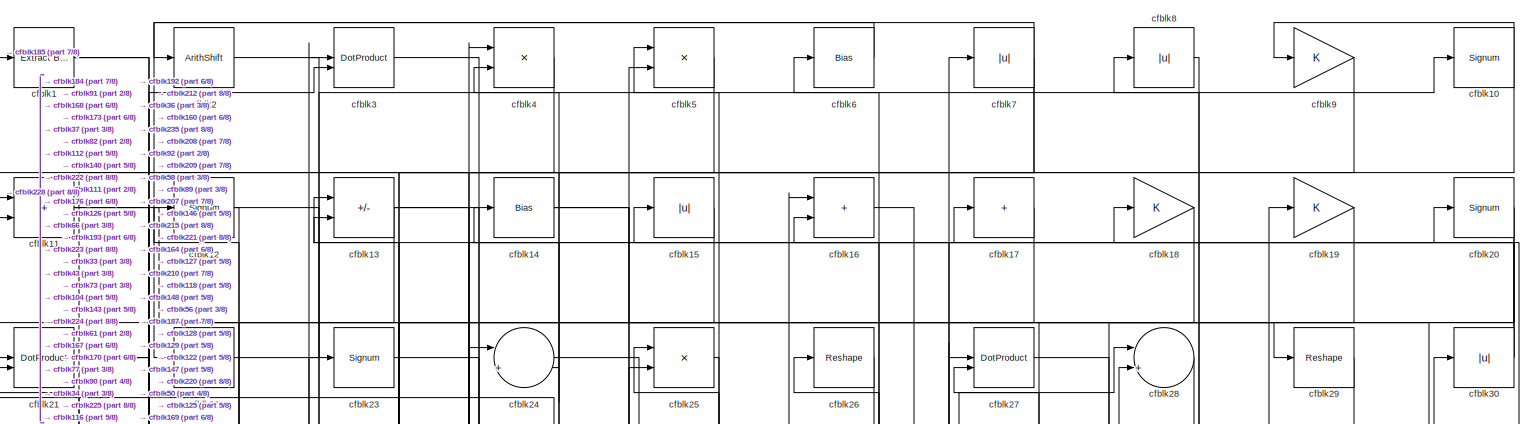
[diagram: root canvas - part 1/8, full width, top band]
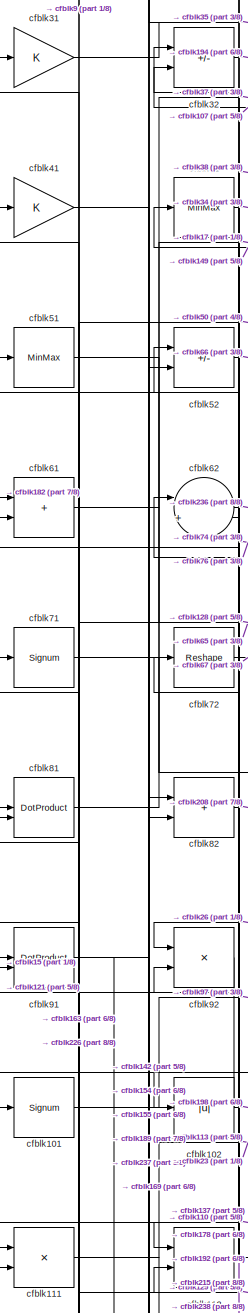
[diagram: root canvas - part 2/8, top left region]
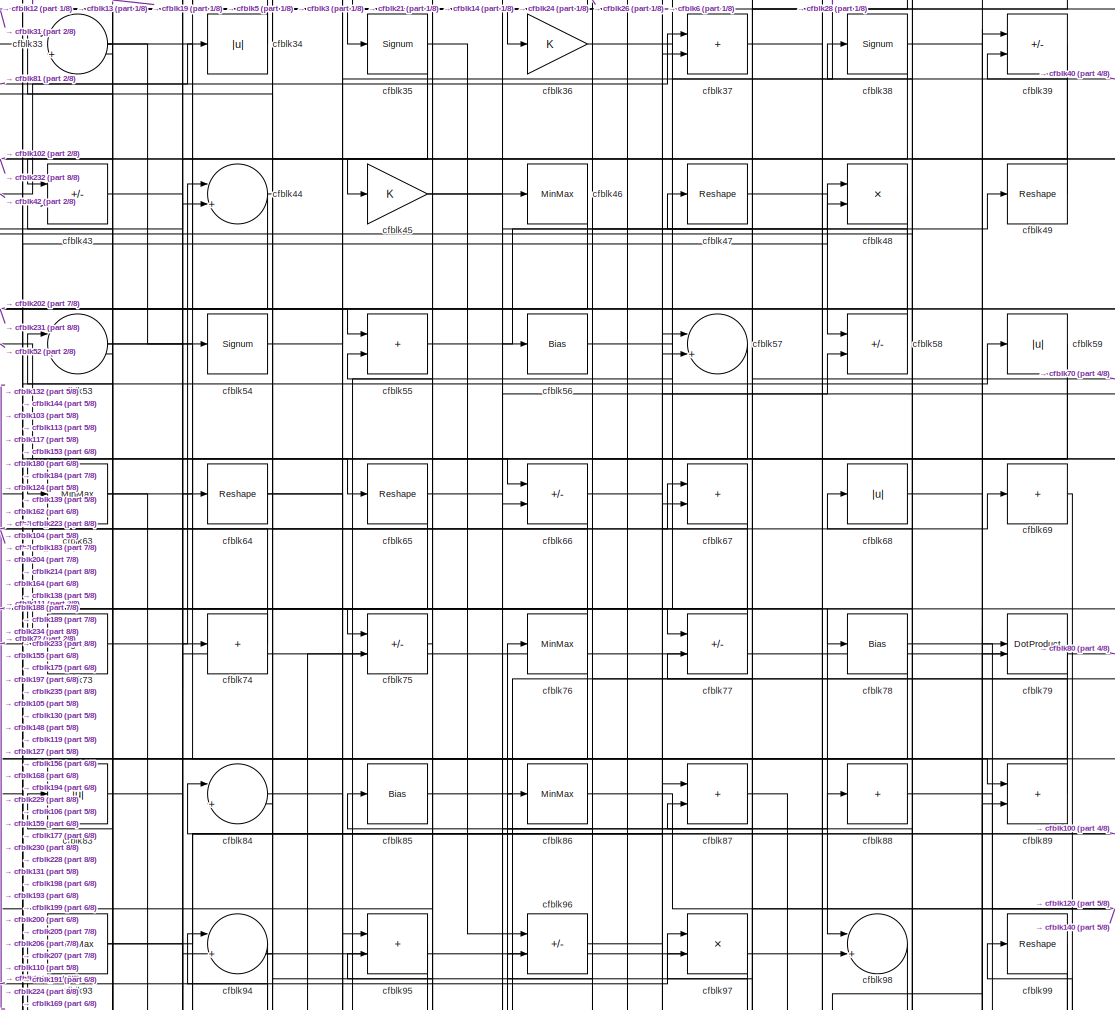
[diagram: root canvas - part 3/8, top center region]
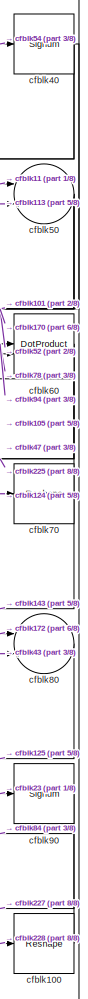
[diagram: root canvas - part 4/8, top right region]
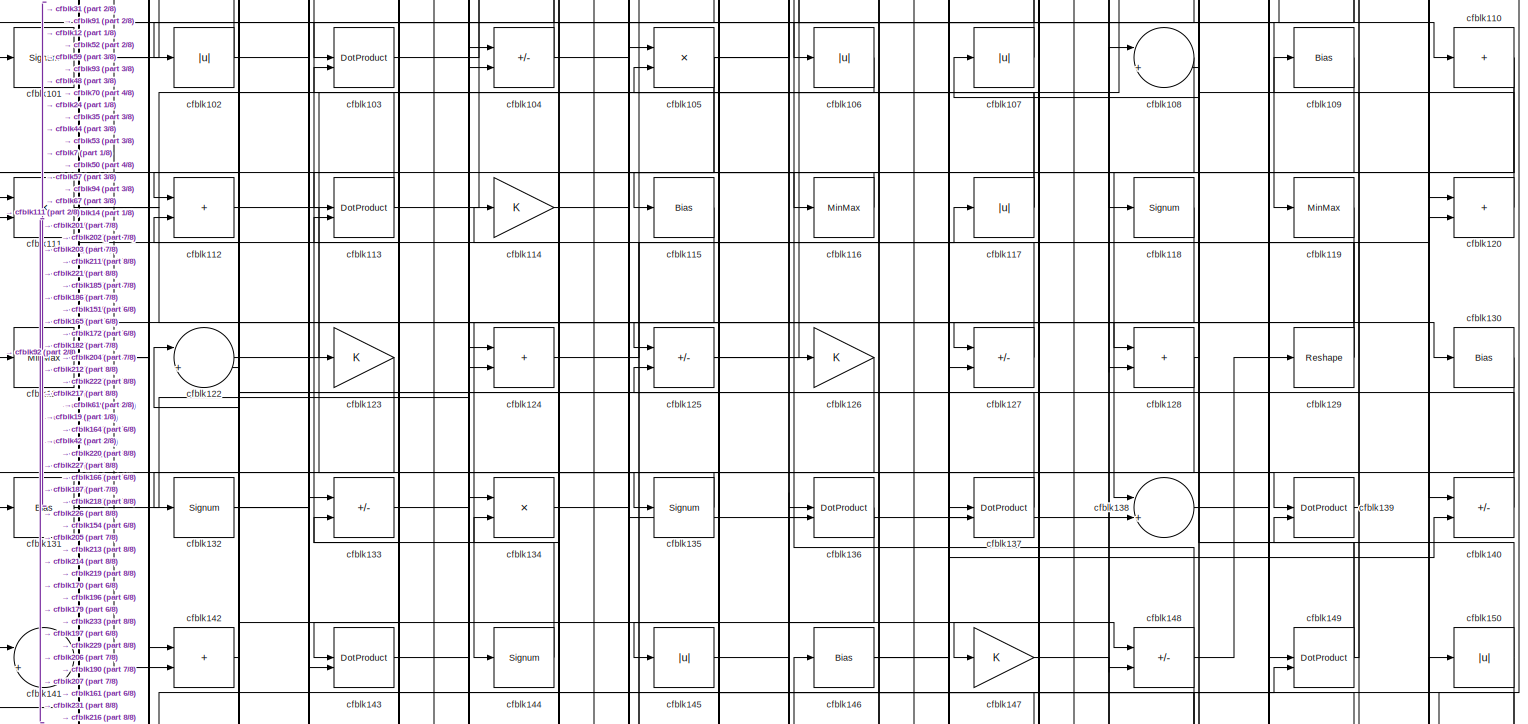
[diagram: root canvas - part 5/8, full width, middle band]
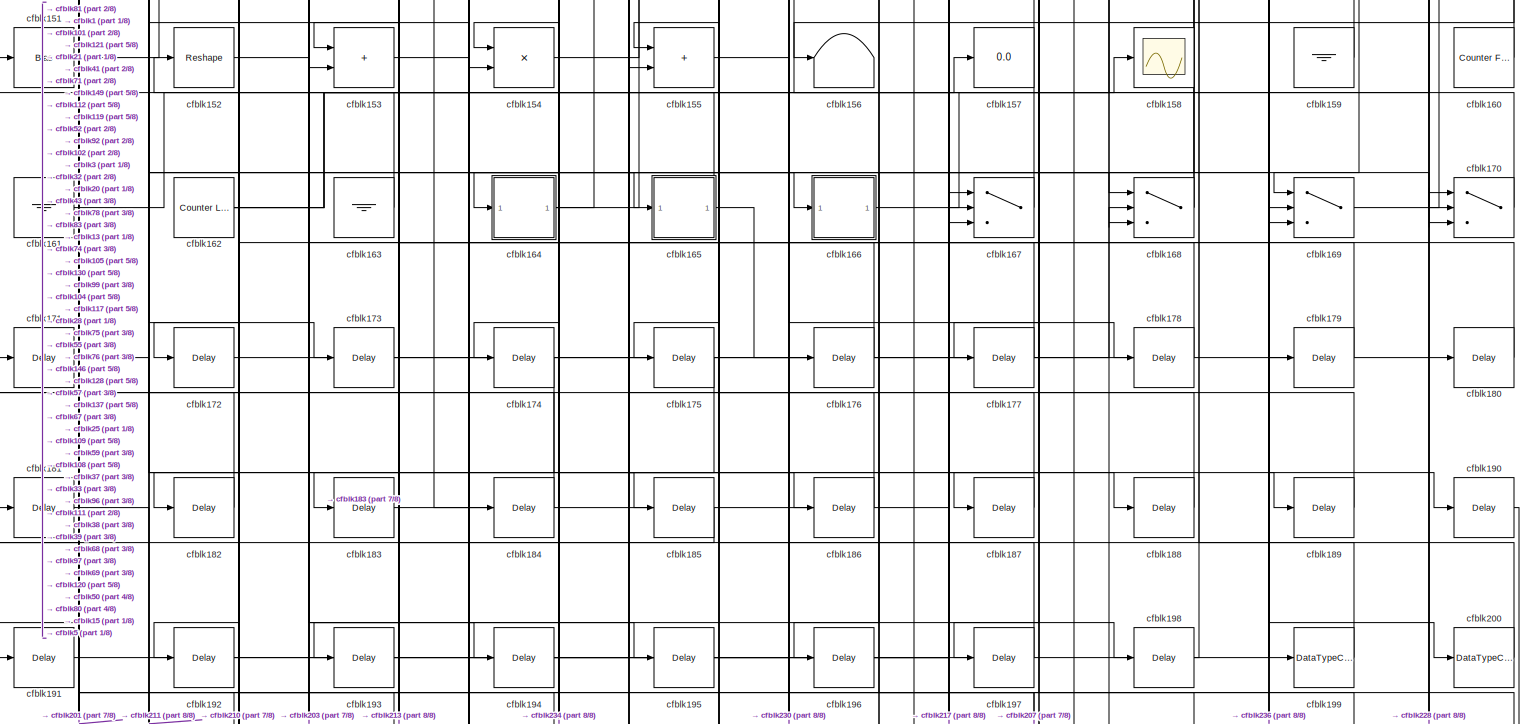
[diagram: root canvas - part 6/8, full width, bottom band]
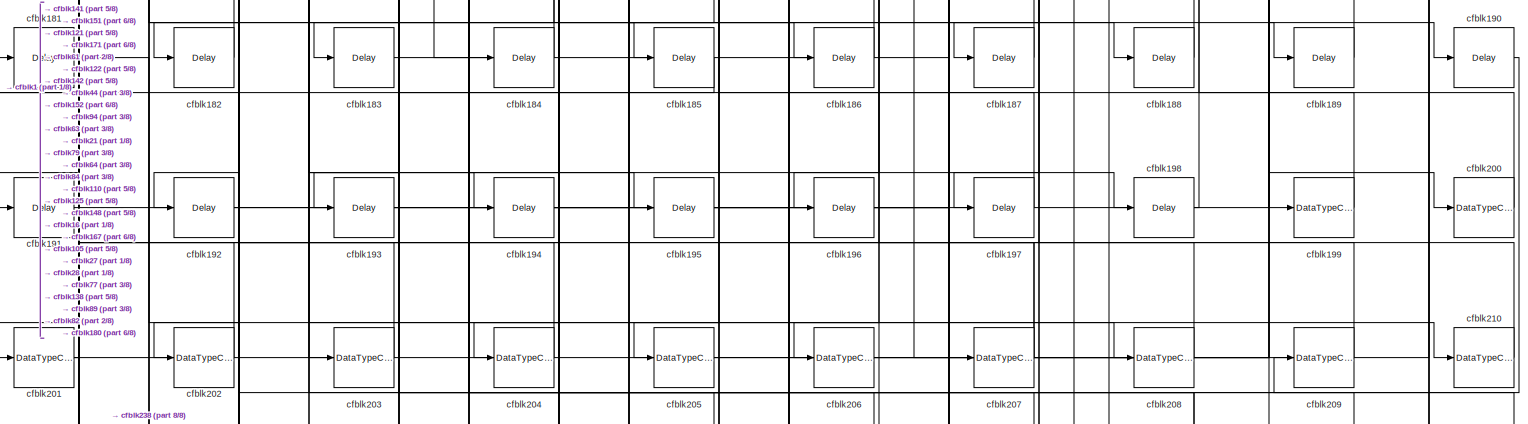
[diagram: root canvas - part 7/8, full width, bottom band]
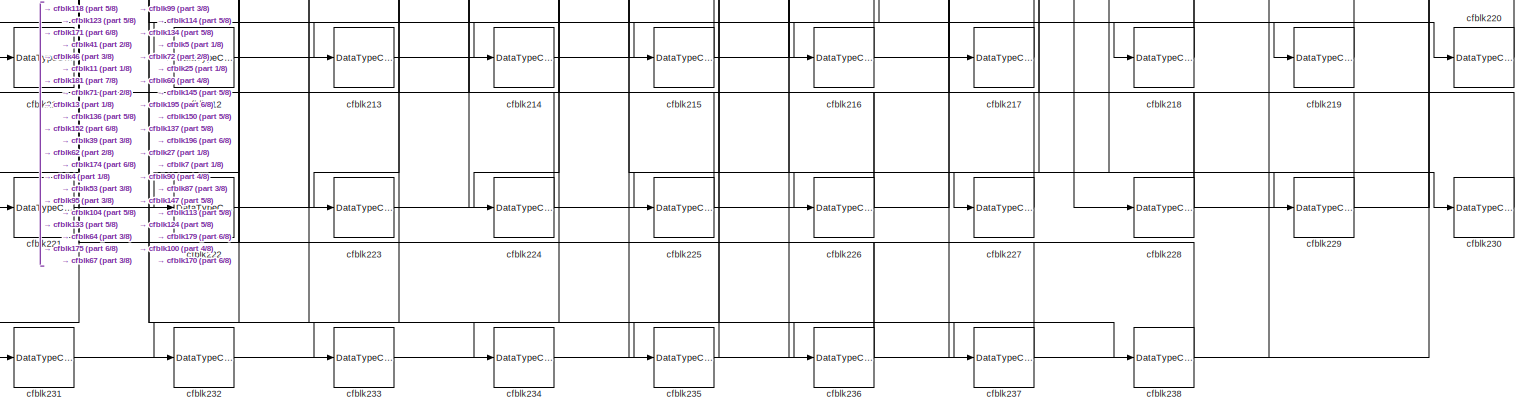
[diagram: root canvas - part 8/8, full width, bottom band]
MODEL slx_4f5a4ba227bb
KIND model
CONFIG AbsTol = auto
CONFIG EnableMultiTasking = off
CONFIG FixedStep = auto
CONFIG MaxStep = auto
CONFIG MinStep = auto
CONFIG RelTol = 1e-3
CONFIG SampleTimeConstraint = Unconstrained
CONFIG SolverName = VariableStepAuto
CONFIG StartTime = 0.0
CONFIG StopTime = 10.0
BLOCK [Reference] cfblk1  REF=simulink/Logic and Bit
Operations/Extract Bits
  LibrarySourceBlock = hdlsllib/Logic and Bit\nOperations/Extract Bits
  SourceBlock = simulink/Logic and Bit\nOperations/Extract Bits
  SourceType = Extract Bits
BLOCK [Signum] cfblk10
BLOCK [Reshape] cfblk100
BLOCK [Signum] cfblk101
BLOCK [Abs] cfblk102
  SaturateOnIntegerOverflow = off
BLOCK [DotProduct] cfblk103
  OutDataTypeStr = Inherit: Inherit via internal rule
BLOCK [Sum] cfblk104
  IconShape = rectangular
  Inputs = +-
BLOCK [Product] cfblk105
  Inputs = */
  RndMeth = Zero
  SaturateOnIntegerOverflow = on
BLOCK [Abs] cfblk106
  SaturateOnIntegerOverflow = off
BLOCK [Abs] cfblk107
  SaturateOnIntegerOverflow = off
BLOCK [Sum] cfblk108
  Inputs = |++
BLOCK [Bias] cfblk109
  Bias = 0.0
  SaturateOnIntegerOverflow = off
BLOCK [Sum] cfblk11
  IconShape = rectangular
BLOCK [Sum] cfblk110
  IconShape = rectangular
  Inputs = +
BLOCK [Product] cfblk111
  Inputs = */
  RndMeth = Zero
  SaturateOnIntegerOverflow = on
BLOCK [Sum] cfblk112
  IconShape = rectangular
BLOCK [DotProduct] cfblk113
  OutDataTypeStr = Inherit: Inherit via internal rule
BLOCK [Gain] cfblk114
BLOCK [Bias] cfblk115
  Bias = 0.0
  SaturateOnIntegerOverflow = off
BLOCK [MinMax] cfblk116
BLOCK [Abs] cfblk117
  SaturateOnIntegerOverflow = off
BLOCK [Signum] cfblk118
BLOCK [MinMax] cfblk119
BLOCK [Signum] cfblk12
BLOCK [Sum] cfblk120
  IconShape = rectangular
BLOCK [MinMax] cfblk121
BLOCK [Sum] cfblk122
  Inputs = |++
BLOCK [Gain] cfblk123
BLOCK [Sum] cfblk124
  IconShape = rectangular
BLOCK [Sum] cfblk125
  IconShape = rectangular
  Inputs = +-
BLOCK [Gain] cfblk126
BLOCK [Sum] cfblk127
  IconShape = rectangular
  Inputs = +-
BLOCK [Sum] cfblk128
  IconShape = rectangular
BLOCK [Reshape] cfblk129
BLOCK [Sum] cfblk13
  IconShape = rectangular
  Inputs = +-
BLOCK [Bias] cfblk130
  Bias = 0.0
  SaturateOnIntegerOverflow = off
BLOCK [Bias] cfblk131
  Bias = 0.0
  SaturateOnIntegerOverflow = off
BLOCK [Signum] cfblk132
BLOCK [Sum] cfblk133
  IconShape = rectangular
  Inputs = +-
BLOCK [Product] cfblk134
  Inputs = */
  RndMeth = Zero
  SaturateOnIntegerOverflow = on
BLOCK [Signum] cfblk135
BLOCK [DotProduct] cfblk136
  OutDataTypeStr = Inherit: Inherit via internal rule
BLOCK [DotProduct] cfblk137
  OutDataTypeStr = Inherit: Inherit via internal rule
BLOCK [Sum] cfblk138
  Inputs = |++
BLOCK [DotProduct] cfblk139
  OutDataTypeStr = Inherit: Inherit via internal rule
BLOCK [Bias] cfblk14
  Bias = 0.0
  SaturateOnIntegerOverflow = off
BLOCK [Sum] cfblk140
  IconShape = rectangular
  Inputs = +-
BLOCK [Sum] cfblk141
  Inputs = |++
BLOCK [Sum] cfblk142
  IconShape = rectangular
BLOCK [DotProduct] cfblk143
  OutDataTypeStr = Inherit: Inherit via internal rule
BLOCK [Signum] cfblk144
BLOCK [Abs] cfblk145
  SaturateOnIntegerOverflow = off
BLOCK [Bias] cfblk146
  Bias = 0.0
  SaturateOnIntegerOverflow = off
BLOCK [Gain] cfblk147
BLOCK [Sum] cfblk148
  IconShape = rectangular
  Inputs = +-
BLOCK [DotProduct] cfblk149
  OutDataTypeStr = Inherit: Inherit via internal rule
BLOCK [Abs] cfblk15
  SaturateOnIntegerOverflow = off
BLOCK [Abs] cfblk150
  SaturateOnIntegerOverflow = off
BLOCK [Bias] cfblk151
  Bias = 0.0
  SaturateOnIntegerOverflow = off
BLOCK [Reshape] cfblk152
BLOCK [Sum] cfblk153
  IconShape = rectangular
BLOCK [Product] cfblk154
  Inputs = */
  RndMeth = Zero
  SaturateOnIntegerOverflow = on
BLOCK [Sum] cfblk155
  IconShape = rectangular
BLOCK [Terminator] cfblk156
BLOCK [Display] cfblk157
  Decimation = 1
BLOCK [Scope] cfblk158
  Floating = off
  NumInputPorts = 1
  ScopeSpecificationString = Simulink.scopes.TimeScopeBlockCfg('CurrentConfiguration', extmgr.ConfigurationSet(extmgr.Configuration('Core','General UI',true),extmgr.Configuration('Core','Source UI',true),extmgr.Configuration('Sources','WiredSimulink',true,'DataLoggingVariableName','ScopeData2','DataLoggingSaveFormat','Array','DataLoggingLimitDataPoints',true,'DataLoggingDecimation','1'),extmgr.Configuration('Visuals','Time Do...<+868ch>
BLOCK [Ground] cfblk159
BLOCK [Sum] cfblk16
  IconShape = rectangular
BLOCK [Reference] cfblk160  REF=hdlsllib/Sources/Counter
Free-Running
  SourceBlock = hdlsllib/Sources/Counter\nFree-Running
  SourceType = Counter Free-Running
BLOCK [Ground] cfblk161
BLOCK [Reference] cfblk162  REF=hdlsllib/Sources/Counter
Limited
  SourceBlock = hdlsllib/Sources/Counter\nLimited
  SourceType = Counter Limited
BLOCK [Ground] cfblk163
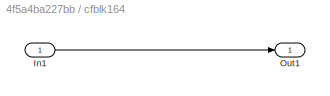
BLOCK [SubSystem] cfblk164
  LibrarySourceBlock = hdlsllib/Ports &\nSubsystems/Subsystem
BLOCK [Inport] cfblk164/In1
BLOCK [Outport] cfblk164/Out1
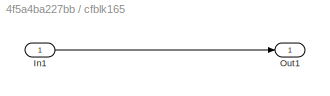
BLOCK [SubSystem] cfblk165
  LibrarySourceBlock = hdlsllib/Ports &\nSubsystems/Subsystem
BLOCK [Inport] cfblk165/In1
BLOCK [Outport] cfblk165/Out1
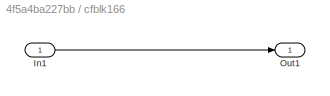
BLOCK [SubSystem] cfblk166
  LibrarySourceBlock = hdlsllib/Ports &\nSubsystems/Subsystem
BLOCK [Inport] cfblk166/In1
BLOCK [Outport] cfblk166/Out1
BLOCK [Switch] cfblk167
  InputSameDT = off
  SaturateOnIntegerOverflow = off
BLOCK [Switch] cfblk168
  InputSameDT = off
  SaturateOnIntegerOverflow = off
BLOCK [Switch] cfblk169
  InputSameDT = off
  SaturateOnIntegerOverflow = off
BLOCK [Sum] cfblk17
  IconShape = rectangular
  Inputs = +
BLOCK [Switch] cfblk170
  InputSameDT = off
  SaturateOnIntegerOverflow = off
BLOCK [Delay] cfblk171
  InputPortMap = u0
  SampleTime = 1
BLOCK [Delay] cfblk172
  InputPortMap = u0
  SampleTime = 1
BLOCK [Delay] cfblk173
  InputPortMap = u0
  SampleTime = 1
BLOCK [Delay] cfblk174
  InputPortMap = u0
  SampleTime = 1
BLOCK [Delay] cfblk175
  InputPortMap = u0
  SampleTime = 1
BLOCK [Delay] cfblk176
  InputPortMap = u0
  SampleTime = 1
BLOCK [Delay] cfblk177
  InputPortMap = u0
  SampleTime = 1
BLOCK [Delay] cfblk178
  InputPortMap = u0
  SampleTime = 1
BLOCK [Delay] cfblk179
  InputPortMap = u0
  SampleTime = 1
BLOCK [Gain] cfblk18
BLOCK [Delay] cfblk180
  InputPortMap = u0
  SampleTime = 1
BLOCK [Delay] cfblk181
  InputPortMap = u0
  SampleTime = 1
BLOCK [Delay] cfblk182
  InputPortMap = u0
  SampleTime = 1
BLOCK [Delay] cfblk183
  InputPortMap = u0
  SampleTime = 1
BLOCK [Delay] cfblk184
  InputPortMap = u0
  SampleTime = 1
BLOCK [Delay] cfblk185
  InputPortMap = u0
  SampleTime = 1
BLOCK [Delay] cfblk186
  InputPortMap = u0
  SampleTime = 1
BLOCK [Delay] cfblk187
  InputPortMap = u0
  SampleTime = 1
BLOCK [Delay] cfblk188
  InputPortMap = u0
  SampleTime = 1
BLOCK [Delay] cfblk189
  InputPortMap = u0
  SampleTime = 1
BLOCK [Gain] cfblk19
BLOCK [Delay] cfblk190
  InputPortMap = u0
  SampleTime = 1
BLOCK [Delay] cfblk191
  InputPortMap = u0
  SampleTime = 1
BLOCK [Delay] cfblk192
  InputPortMap = u0
  SampleTime = 1
BLOCK [Delay] cfblk193
  InputPortMap = u0
  SampleTime = 1
BLOCK [Delay] cfblk194
  InputPortMap = u0
  SampleTime = 1
BLOCK [Delay] cfblk195
  InputPortMap = u0
  SampleTime = 1
BLOCK [Delay] cfblk196
  InputPortMap = u0
  SampleTime = 1
BLOCK [Delay] cfblk197
  InputPortMap = u0
  SampleTime = 1
BLOCK [Delay] cfblk198
  InputPortMap = u0
  SampleTime = 1
BLOCK [DataTypeConversion] cfblk199
  OutDataTypeStr = uint8
  RndMeth = Floor
  SaturateOnIntegerOverflow = off
BLOCK [ArithShift] cfblk2
  BitShiftNumber = 8
  InputPortMap = u0
BLOCK [Signum] cfblk20
BLOCK [DataTypeConversion] cfblk200
  OutDataTypeStr = uint8
  RndMeth = Floor
  SaturateOnIntegerOverflow = off
BLOCK [DataTypeConversion] cfblk201
  RndMeth = Floor
  SaturateOnIntegerOverflow = off
BLOCK [DataTypeConversion] cfblk202
  OutDataTypeStr = uint8
  RndMeth = Floor
  SaturateOnIntegerOverflow = off
BLOCK [DataTypeConversion] cfblk203
  OutDataTypeStr = uint8
  RndMeth = Floor
  SaturateOnIntegerOverflow = off
BLOCK [DataTypeConversion] cfblk204
  OutDataTypeStr = uint8
  RndMeth = Floor
  SaturateOnIntegerOverflow = off
BLOCK [DataTypeConversion] cfblk205
  OutDataTypeStr = uint8
  RndMeth = Floor
  SaturateOnIntegerOverflow = off
BLOCK [DataTypeConversion] cfblk206
  OutDataTypeStr = uint8
  RndMeth = Floor
  SaturateOnIntegerOverflow = off
BLOCK [DataTypeConversion] cfblk207
  RndMeth = Floor
  SaturateOnIntegerOverflow = off
BLOCK [DataTypeConversion] cfblk208
  OutDataTypeStr = uint8
  RndMeth = Floor
  SaturateOnIntegerOverflow = off
BLOCK [DataTypeConversion] cfblk209
  OutDataTypeStr = uint8
  RndMeth = Floor
  SaturateOnIntegerOverflow = off
BLOCK [DotProduct] cfblk21
  OutDataTypeStr = Inherit: Inherit via internal rule
BLOCK [DataTypeConversion] cfblk210
  OutDataTypeStr = uint8
  RndMeth = Floor
  SaturateOnIntegerOverflow = off
BLOCK [DataTypeConversion] cfblk211
  OutDataTypeStr = uint8
  RndMeth = Floor
  SaturateOnIntegerOverflow = off
BLOCK [DataTypeConversion] cfblk212
  OutDataTypeStr = uint8
  RndMeth = Floor
  SaturateOnIntegerOverflow = off
BLOCK [DataTypeConversion] cfblk213
  OutDataTypeStr = uint8
  RndMeth = Floor
  SaturateOnIntegerOverflow = off
BLOCK [DataTypeConversion] cfblk214
  OutDataTypeStr = uint8
  RndMeth = Floor
  SaturateOnIntegerOverflow = off
BLOCK [DataTypeConversion] cfblk215
  RndMeth = Floor
  SaturateOnIntegerOverflow = off
BLOCK [DataTypeConversion] cfblk216
  OutDataTypeStr = uint8
  RndMeth = Floor
  SaturateOnIntegerOverflow = off
BLOCK [DataTypeConversion] cfblk217
  OutDataTypeStr = uint8
  RndMeth = Floor
  SaturateOnIntegerOverflow = off
BLOCK [DataTypeConversion] cfblk218
  RndMeth = Floor
  SaturateOnIntegerOverflow = off
BLOCK [DataTypeConversion] cfblk219
  OutDataTypeStr = uint8
  RndMeth = Floor
  SaturateOnIntegerOverflow = off
BLOCK [Sum] cfblk22
  IconShape = rectangular
  Inputs = +
BLOCK [DataTypeConversion] cfblk220
  OutDataTypeStr = uint8
  RndMeth = Floor
  SaturateOnIntegerOverflow = off
BLOCK [DataTypeConversion] cfblk221
  OutDataTypeStr = uint8
  RndMeth = Floor
  SaturateOnIntegerOverflow = off
BLOCK [DataTypeConversion] cfblk222
  OutDataTypeStr = uint8
  RndMeth = Floor
  SaturateOnIntegerOverflow = off
BLOCK [DataTypeConversion] cfblk223
  OutDataTypeStr = uint8
  RndMeth = Floor
  SaturateOnIntegerOverflow = off
BLOCK [DataTypeConversion] cfblk224
  OutDataTypeStr = uint8
  RndMeth = Floor
  SaturateOnIntegerOverflow = off
BLOCK [DataTypeConversion] cfblk225
  OutDataTypeStr = uint8
  RndMeth = Floor
  SaturateOnIntegerOverflow = off
BLOCK [DataTypeConversion] cfblk226
  RndMeth = Floor
  SaturateOnIntegerOverflow = off
BLOCK [DataTypeConversion] cfblk227
  OutDataTypeStr = uint8
  RndMeth = Floor
  SaturateOnIntegerOverflow = off
BLOCK [DataTypeConversion] cfblk228
  RndMeth = Floor
  SaturateOnIntegerOverflow = off
BLOCK [DataTypeConversion] cfblk229
  OutDataTypeStr = uint8
  RndMeth = Floor
  SaturateOnIntegerOverflow = off
BLOCK [Signum] cfblk23
BLOCK [DataTypeConversion] cfblk230
  OutDataTypeStr = uint8
  RndMeth = Floor
  SaturateOnIntegerOverflow = off
BLOCK [DataTypeConversion] cfblk231
  OutDataTypeStr = uint8
  RndMeth = Floor
  SaturateOnIntegerOverflow = off
BLOCK [DataTypeConversion] cfblk232
  OutDataTypeStr = uint8
  RndMeth = Floor
  SaturateOnIntegerOverflow = off
BLOCK [DataTypeConversion] cfblk233
  OutDataTypeStr = uint8
  RndMeth = Floor
  SaturateOnIntegerOverflow = off
BLOCK [DataTypeConversion] cfblk234
  OutDataTypeStr = uint8
  RndMeth = Floor
  SaturateOnIntegerOverflow = off
BLOCK [DataTypeConversion] cfblk235
  OutDataTypeStr = uint8
  RndMeth = Floor
  SaturateOnIntegerOverflow = off
BLOCK [DataTypeConversion] cfblk236
  RndMeth = Floor
  SaturateOnIntegerOverflow = off
BLOCK [DataTypeConversion] cfblk237
  OutDataTypeStr = uint8
  RndMeth = Floor
  SaturateOnIntegerOverflow = off
BLOCK [DataTypeConversion] cfblk238
  OutDataTypeStr = uint8
  RndMeth = Floor
  SaturateOnIntegerOverflow = off
BLOCK [Sum] cfblk24
  Inputs = |++
BLOCK [Product] cfblk25
  Inputs = */
  RndMeth = Zero
  SaturateOnIntegerOverflow = on
BLOCK [Reshape] cfblk26
BLOCK [DotProduct] cfblk27
  OutDataTypeStr = Inherit: Inherit via internal rule
BLOCK [Sum] cfblk28
  Inputs = |++
BLOCK [Reshape] cfblk29
BLOCK [DotProduct] cfblk3
  OutDataTypeStr = Inherit: Inherit via internal rule
BLOCK [Abs] cfblk30
  SaturateOnIntegerOverflow = off
BLOCK [Gain] cfblk31
BLOCK [Sum] cfblk32
  IconShape = rectangular
  Inputs = +-
BLOCK [Sum] cfblk33
  Inputs = |++
BLOCK [Abs] cfblk34
  SaturateOnIntegerOverflow = off
BLOCK [Signum] cfblk35
BLOCK [Gain] cfblk36
BLOCK [Sum] cfblk37
  IconShape = rectangular
BLOCK [Signum] cfblk38
BLOCK [Sum] cfblk39
  IconShape = rectangular
  Inputs = +-
BLOCK [Product] cfblk4
  Inputs = */
  RndMeth = Zero
  SaturateOnIntegerOverflow = on
BLOCK [Signum] cfblk40
BLOCK [Gain] cfblk41
BLOCK [MinMax] cfblk42
BLOCK [Sum] cfblk43
  IconShape = rectangular
  Inputs = +-
BLOCK [Sum] cfblk44
  Inputs = |++
BLOCK [Gain] cfblk45
BLOCK [MinMax] cfblk46
BLOCK [Reshape] cfblk47
BLOCK [Product] cfblk48
  Inputs = */
  RndMeth = Zero
  SaturateOnIntegerOverflow = on
BLOCK [Reshape] cfblk49
BLOCK [Product] cfblk5
  Inputs = */
  RndMeth = Zero
  SaturateOnIntegerOverflow = on
BLOCK [Sum] cfblk50
  Inputs = |++
BLOCK [MinMax] cfblk51
BLOCK [Sum] cfblk52
  IconShape = rectangular
  Inputs = +-
BLOCK [Sum] cfblk53
  Inputs = |++
BLOCK [Signum] cfblk54
BLOCK [Sum] cfblk55
  IconShape = rectangular
BLOCK [Bias] cfblk56
  Bias = 0.0
  SaturateOnIntegerOverflow = off
BLOCK [Sum] cfblk57
  Inputs = |++
BLOCK [Sum] cfblk58
  IconShape = rectangular
  Inputs = +-
BLOCK [Abs] cfblk59
  SaturateOnIntegerOverflow = off
BLOCK [Bias] cfblk6
  Bias = 0.0
  SaturateOnIntegerOverflow = off
BLOCK [DotProduct] cfblk60
  OutDataTypeStr = Inherit: Inherit via internal rule
BLOCK [Sum] cfblk61
  IconShape = rectangular
BLOCK [Sum] cfblk62
  Inputs = |++
BLOCK [MinMax] cfblk63
BLOCK [Reshape] cfblk64
BLOCK [Reshape] cfblk65
BLOCK [Sum] cfblk66
  IconShape = rectangular
  Inputs = +-
BLOCK [Sum] cfblk67
  IconShape = rectangular
BLOCK [Abs] cfblk68
  SaturateOnIntegerOverflow = off
BLOCK [Sum] cfblk69
  IconShape = rectangular
  Inputs = +
BLOCK [Abs] cfblk7
  SaturateOnIntegerOverflow = off
BLOCK [Reshape] cfblk70
BLOCK [Signum] cfblk71
BLOCK [Reshape] cfblk72
BLOCK [Signum] cfblk73
BLOCK [Sum] cfblk74
  IconShape = rectangular
  Inputs = +
BLOCK [Sum] cfblk75
  IconShape = rectangular
  Inputs = +-
BLOCK [MinMax] cfblk76
BLOCK [Sum] cfblk77
  IconShape = rectangular
  Inputs = +-
BLOCK [Bias] cfblk78
  Bias = 0.0
  SaturateOnIntegerOverflow = off
BLOCK [DotProduct] cfblk79
  OutDataTypeStr = Inherit: Inherit via internal rule
BLOCK [Abs] cfblk8
  SaturateOnIntegerOverflow = off
BLOCK [Sum] cfblk80
  Inputs = |++
BLOCK [DotProduct] cfblk81
  OutDataTypeStr = Inherit: Inherit via internal rule
BLOCK [Sum] cfblk82
  IconShape = rectangular
BLOCK [Abs] cfblk83
  SaturateOnIntegerOverflow = off
BLOCK [Sum] cfblk84
  Inputs = |++
BLOCK [Bias] cfblk85
  Bias = 0.0
  SaturateOnIntegerOverflow = off
BLOCK [MinMax] cfblk86
BLOCK [Sum] cfblk87
  IconShape = rectangular
BLOCK [Sum] cfblk88
  IconShape = rectangular
  Inputs = +
BLOCK [Sum] cfblk89
  IconShape = rectangular
BLOCK [Gain] cfblk9
BLOCK [Signum] cfblk90
BLOCK [DotProduct] cfblk91
  OutDataTypeStr = Inherit: Inherit via internal rule
BLOCK [Product] cfblk92
  Inputs = */
  RndMeth = Zero
  SaturateOnIntegerOverflow = on
BLOCK [MinMax] cfblk93
BLOCK [Sum] cfblk94
  Inputs = |++
BLOCK [Sum] cfblk95
  IconShape = rectangular
BLOCK [Sum] cfblk96
  IconShape = rectangular
  Inputs = +-
BLOCK [Product] cfblk97
  Inputs = */
  RndMeth = Zero
  SaturateOnIntegerOverflow = on
BLOCK [Sum] cfblk98
  Inputs = |++
BLOCK [Reshape] cfblk99
LINE cfblk100:1 -> cfblk84:1
NET cfblk101:1 -> cfblk154:2, cfblk97:1
NET cfblk102:1 -> cfblk198:1, cfblk81:1
LINE cfblk103:1 -> cfblk57:1
NET cfblk104:1 -> cfblk166:1, cfblk94:1
NET cfblk105:1 -> cfblk164:1, cfblk174:1, cfblk60:2, cfblk88:1
LINE cfblk106:1 -> cfblk105:2
LINE cfblk107:1 -> cfblk32:1
LINE cfblk108:1 -> cfblk138:1
LINE cfblk109:1 -> cfblk197:1
NET cfblk10:1 -> cfblk24:2, cfblk9:1
NET cfblk110:1 -> cfblk111:2, cfblk205:1
NET cfblk111:1 -> cfblk169:3, cfblk23:1
LINE cfblk112:1 -> cfblk135:1
NET cfblk113:1 -> cfblk50:2, cfblk52:1
LINE cfblk114:1 -> cfblk226:1
LINE cfblk115:1 -> cfblk144:1
LINE cfblk116:1 -> cfblk115:1
NET cfblk117:1 -> cfblk103:2, cfblk53:1
LINE cfblk118:1 -> cfblk211:1
LINE cfblk119:1 -> cfblk172:1
NET cfblk11:1 -> cfblk220:1, cfblk50:1
LINE cfblk120:1 -> cfblk85:1
NET cfblk121:1 -> cfblk165:1, cfblk185:1, cfblk186:1
LINE cfblk122:1 -> cfblk19:1
LINE cfblk123:1 -> cfblk221:1
LINE cfblk124:1 -> cfblk70:1
NET cfblk125:1 -> cfblk148:1, cfblk30:1
LINE cfblk126:1 -> cfblk145:1
LINE cfblk127:1 -> cfblk86:1
NET cfblk128:1 -> cfblk108:2, cfblk196:1
NET cfblk129:1 -> cfblk31:1, cfblk8:1
NET cfblk12:1 -> cfblk112:1, cfblk66:2
LINE cfblk130:1 -> cfblk154:1
LINE cfblk131:1 -> cfblk44:2
NET cfblk132:1 -> cfblk48:2, cfblk59:1
LINE cfblk133:1 -> cfblk215:1
LINE cfblk134:1 -> cfblk218:1
LINE cfblk135:1 -> cfblk132:1
LINE cfblk136:1 -> cfblk212:1
LINE cfblk137:1 -> cfblk61:2
LINE cfblk138:1 -> cfblk190:1
LINE cfblk139:1 -> cfblk99:1
NET cfblk13:1 -> cfblk167:2, cfblk170:2, cfblk222:1
LINE cfblk140:1 -> cfblk12:1
LINE cfblk141:1 -> cfblk201:1
LINE cfblk142:1 -> cfblk182:1
LINE cfblk143:1 -> cfblk24:1
LINE cfblk144:1 -> cfblk93:1
LINE cfblk145:1 -> cfblk219:1
NET cfblk146:1 -> cfblk140:2, cfblk20:1
LINE cfblk147:1 -> cfblk229:1
NET cfblk148:1 -> cfblk129:1, cfblk206:1, cfblk76:1
NET cfblk149:1 -> cfblk109:1, cfblk139:2, cfblk42:1
NET cfblk14:1 -> cfblk116:1, cfblk29:1
NET cfblk150:1 -> cfblk107:1, cfblk216:1
LINE cfblk151:1 -> cfblk149:2
LINE cfblk152:1 -> cfblk203:1
LINE cfblk153:1 -> cfblk195:1
LINE cfblk154:1 -> cfblk117:1
LINE cfblk155:1 -> cfblk178:1
LINE cfblk159:1 -> cfblk97:2
LINE cfblk15:1 -> cfblk91:2
LINE cfblk160:1 -> cfblk5:1
LINE cfblk161:1 -> cfblk120:2
NET cfblk162:1 -> cfblk108:1, cfblk157:1, cfblk74:1
LINE cfblk163:1 -> cfblk81:2
LINE cfblk164/In1:1 -> cfblk164/Out1:1
NET cfblk164:1 -> cfblk28:1, cfblk75:2
LINE cfblk165/In1:1 -> cfblk165/Out1:1
NET cfblk165:1 -> cfblk112:2, cfblk176:1
LINE cfblk166/In1:1 -> cfblk166/Out1:1
LINE cfblk166:1 -> cfblk158:1
LINE cfblk167:1 -> cfblk25:1
NET cfblk168:1 -> cfblk33:2, cfblk96:2
LINE cfblk169:1 -> cfblk15:1
LINE cfblk16:1 -> cfblk207:1
LINE cfblk170:1 -> cfblk146:1
LINE cfblk171:1 -> cfblk210:1
LINE cfblk172:1 -> cfblk80:1
LINE cfblk173:1 -> cfblk168:2
LINE cfblk174:1 -> cfblk213:1
LINE cfblk175:1 -> cfblk234:1
LINE cfblk176:1 -> cfblk3:1
LINE cfblk177:1 -> cfblk33:1
LINE cfblk178:1 -> cfblk92:2
LINE cfblk179:1 -> cfblk137:1
LINE cfblk17:1 -> cfblk82:2
LINE cfblk180:1 -> cfblk43:2
LINE cfblk181:1 -> cfblk238:1
LINE cfblk182:1 -> cfblk61:1
LINE cfblk183:1 -> cfblk167:1
LINE cfblk184:1 -> cfblk21:2
LINE cfblk185:1 -> cfblk1:1
LINE cfblk186:1 -> cfblk125:2
LINE cfblk187:1 -> cfblk105:1
LINE cfblk188:1 -> cfblk77:2
LINE cfblk189:1 -> cfblk82:1
LINE cfblk18:1 -> cfblk127:1
LINE cfblk190:1 -> cfblk209:1
LINE cfblk191:1 -> cfblk167:3
LINE cfblk192:1 -> cfblk25:2
LINE cfblk193:1 -> cfblk39:1
LINE cfblk194:1 -> cfblk67:2
LINE cfblk195:1 -> cfblk230:1
LINE cfblk196:1 -> cfblk217:1
LINE cfblk197:1 -> cfblk55:2
LINE cfblk198:1 -> cfblk38:1
LINE cfblk199:1 -> cfblk83:1
LINE cfblk19:1 -> cfblk73:1
NET cfblk1:1 -> cfblk168:3, cfblk37:2
LINE cfblk200:1 -> cfblk68:1
NET cfblk201:1 -> cfblk180:1, cfblk181:1
LINE cfblk202:1 -> cfblk141:1
LINE cfblk203:1 -> cfblk141:2
LINE cfblk204:1 -> cfblk122:1
LINE cfblk205:1 -> cfblk79:1
LINE cfblk206:1 -> cfblk79:2
NET cfblk207:1 -> cfblk122:2, cfblk151:1, cfblk89:2
LINE cfblk208:1 -> cfblk16:1
LINE cfblk209:1 -> cfblk16:2
NET cfblk20:1 -> cfblk148:2, cfblk193:1
LINE cfblk210:1 -> cfblk27:2
LINE cfblk211:1 -> cfblk171:1
LINE cfblk212:1 -> cfblk5:2
LINE cfblk213:1 -> cfblk136:1
LINE cfblk214:1 -> cfblk136:2
NET cfblk215:1 -> cfblk27:1, cfblk72:1
LINE cfblk216:1 -> cfblk133:1
LINE cfblk217:1 -> cfblk133:2
NET cfblk218:1 -> cfblk113:2, cfblk124:1
LINE cfblk219:1 -> cfblk134:1
NET cfblk21:1 -> cfblk173:1, cfblk3:2
LINE cfblk220:1 -> cfblk134:2
LINE cfblk221:1 -> cfblk7:1
LINE cfblk222:1 -> cfblk123:1
LINE cfblk223:1 -> cfblk64:1
LINE cfblk224:1 -> cfblk4:1
LINE cfblk225:1 -> cfblk4:2
NET cfblk226:1 -> cfblk104:1, cfblk71:1
LINE cfblk227:1 -> cfblk114:1
NET cfblk228:1 -> cfblk100:1, cfblk11:1, cfblk170:1, cfblk53:2
LINE cfblk229:1 -> cfblk87:1
LINE cfblk22:1 -> cfblk10:1
LINE cfblk230:1 -> cfblk87:2
LINE cfblk231:1 -> cfblk150:1
LINE cfblk232:1 -> cfblk46:1
LINE cfblk233:1 -> cfblk137:2
LINE cfblk234:1 -> cfblk95:1
LINE cfblk235:1 -> cfblk95:2
NET cfblk236:1 -> cfblk152:1, cfblk179:1, cfblk41:1
LINE cfblk237:1 -> cfblk62:1
LINE cfblk238:1 -> cfblk62:2
LINE cfblk23:1 -> cfblk90:1
LINE cfblk24:1 -> cfblk36:1
LINE cfblk25:1 -> cfblk235:1
LINE cfblk26:1 -> cfblk92:1
LINE cfblk27:1 -> cfblk118:1
LINE cfblk28:1 -> cfblk187:1
LINE cfblk29:1 -> cfblk147:1
LINE cfblk2:1 -> cfblk126:1
NET cfblk30:1 -> cfblk13:1, cfblk18:1
LINE cfblk31:1 -> cfblk35:1
LINE cfblk32:1 -> cfblk194:1
NET cfblk33:1 -> cfblk13:2, cfblk54:1, cfblk55:1
LINE cfblk34:1 -> cfblk21:1
NET cfblk35:1 -> cfblk124:2, cfblk45:1, cfblk96:1
LINE cfblk36:1 -> cfblk98:1
LINE cfblk37:1 -> cfblk168:1
NET cfblk38:1 -> cfblk102:1, cfblk200:1
LINE cfblk39:1 -> cfblk232:1
LINE cfblk3:1 -> cfblk77:1
NET cfblk40:1 -> cfblk60:1, cfblk78:1, cfblk94:2
LINE cfblk41:1 -> cfblk169:2
LINE cfblk42:1 -> cfblk34:1
LINE cfblk43:1 -> cfblk80:2
NET cfblk44:1 -> cfblk202:1, cfblk84:2
NET cfblk45:1 -> cfblk130:1, cfblk56:1
LINE cfblk46:1 -> cfblk231:1
LINE cfblk47:1 -> cfblk58:1
LINE cfblk48:1 -> cfblk103:1
LINE cfblk49:1 -> cfblk39:2
LINE cfblk4:1 -> cfblk223:1
NET cfblk50:1 -> cfblk101:1, cfblk170:3, cfblk52:2
LINE cfblk51:1 -> cfblk149:1
NET cfblk52:1 -> cfblk192:1, cfblk66:1
NET cfblk53:1 -> cfblk139:1, cfblk89:1
LINE cfblk54:1 -> cfblk40:1
LINE cfblk55:1 -> cfblk49:1
LINE cfblk56:1 -> cfblk28:2
LINE cfblk57:1 -> cfblk156:1
LINE cfblk58:1 -> cfblk26:1
NET cfblk59:1 -> cfblk177:1, cfblk63:1
LINE cfblk5:1 -> cfblk43:1
NET cfblk60:1 -> cfblk143:2, cfblk225:1
NET cfblk61:1 -> cfblk128:2, cfblk17:1
LINE cfblk62:1 -> cfblk236:1
NET cfblk63:1 -> cfblk184:1, cfblk65:1
NET cfblk64:1 -> cfblk138:2, cfblk189:1
NET cfblk65:1 -> cfblk111:1, cfblk48:1
NET cfblk66:1 -> cfblk58:2, cfblk75:1
NET cfblk67:1 -> cfblk113:1, cfblk214:1
LINE cfblk68:1 -> cfblk199:1
LINE cfblk69:1 -> cfblk169:1
LINE cfblk6:1 -> cfblk22:1
NET cfblk70:1 -> cfblk143:1, cfblk47:1
NET cfblk71:1 -> cfblk155:2, cfblk237:1
LINE cfblk72:1 -> cfblk67:1
LINE cfblk73:1 -> cfblk44:1
LINE cfblk74:1 -> cfblk51:1
LINE cfblk75:1 -> cfblk175:1
NET cfblk76:1 -> cfblk153:2, cfblk155:1, cfblk32:2
LINE cfblk77:1 -> cfblk14:1
NET cfblk78:1 -> cfblk110:1, cfblk153:1
LINE cfblk79:1 -> cfblk204:1
NET cfblk7:1 -> cfblk104:2, cfblk11:2, cfblk2:1
LINE cfblk80:1 -> cfblk125:1
LINE cfblk81:1 -> cfblk37:1
LINE cfblk82:1 -> cfblk208:1
LINE cfblk83:1 -> cfblk98:2
LINE cfblk84:1 -> cfblk188:1
LINE cfblk85:1 -> cfblk119:1
LINE cfblk86:1 -> cfblk120:1
LINE cfblk87:1 -> cfblk228:1
LINE cfblk88:1 -> cfblk140:1
LINE cfblk89:1 -> cfblk6:1
LINE cfblk8:1 -> cfblk128:1
LINE cfblk90:1 -> cfblk227:1
NET cfblk91:1 -> cfblk142:1, cfblk142:2
LINE cfblk92:1 -> cfblk121:1
NET cfblk93:1 -> cfblk127:2, cfblk57:2
LINE cfblk94:1 -> cfblk183:1
LINE cfblk95:1 -> cfblk233:1
LINE cfblk96:1 -> cfblk69:1
LINE cfblk97:1 -> cfblk106:1
LINE cfblk98:1 -> cfblk131:1
NET cfblk99:1 -> cfblk191:1, cfblk224:1
LINE cfblk9:1 -> cfblk91:1
note: NET lines group one-source signal fan-out (src -> all destinations, sorted); 1:1 wires keep LINE
